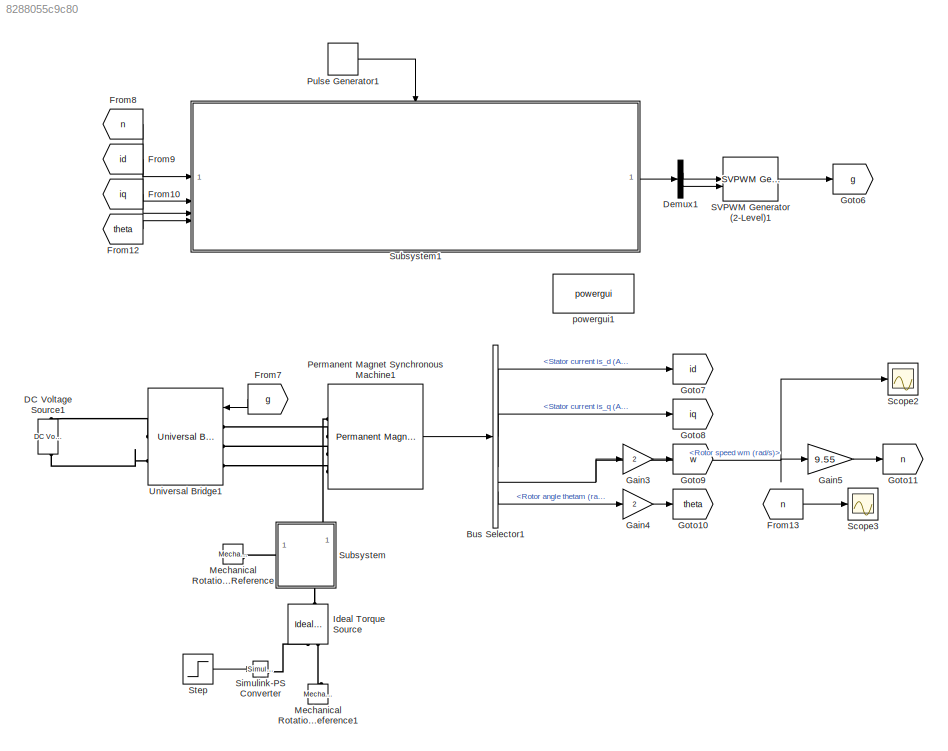
MODEL slx_8288055c9c80
KIND model
CONFIG AbsTol = auto
CONFIG EnableMultiTasking = off
CONFIG FixedStep = 1e-6
CONFIG MaxStep = auto
CONFIG MinStep = auto
CONFIG RelTol = 1e-3
CONFIG SampleTimeConstraint = Unconstrained
CONFIG SolverName = FixedStepAuto
CONFIG StartTime = 0.0
CONFIG StopTime = 0.1
BLOCK [BusSelector] Bus Selector1
  OutputSignals = Stator current is_d (A),Stator current is_q (A),Rotor speed wm (rad/s),Rotor angle thetam (rad)
BLOCK [Reference] DC Voltage Source1  REF=spsDCVoltageSourceLib/DC Voltage Source
  LibrarySourceBlock = sps_lib/Sources/DC Voltage Source
  SourceBlock = spsDCVoltageSourceLib/DC Voltage Source
  SourceType = DC Voltage Source
BLOCK [Demux] Demux1
  Outputs = 2
BLOCK [From] From10
  GotoTag = iq
BLOCK [From] From12
  GotoTag = theta
BLOCK [From] From13
  GotoTag = n
BLOCK [From] From7
  GotoTag = g
  NameLocation = top
BLOCK [From] From8
  GotoTag = n
BLOCK [From] From9
  GotoTag = id
BLOCK [Gain] Gain3
  Gain = 2
BLOCK [Gain] Gain4
  Gain = 2
BLOCK [Gain] Gain5
  Gain = 9.55
BLOCK [Goto] Goto10
  GotoTag = theta
BLOCK [Goto] Goto11
  GotoTag = n
BLOCK [Goto] Goto6
  GotoTag = g
BLOCK [Goto] Goto7
  GotoTag = id
BLOCK [Goto] Goto8
  GotoTag = iq
BLOCK [Goto] Goto9
  GotoTag = w
BLOCK [Reference] Ideal Torque Source  REF=fl_lib/Mechanical/Mechanical Sources/Ideal Torque Source
  NameLocation = right
  SourceBlock = fl_lib/Mechanical/Mechanical Sources/Ideal Torque Source
  SourceType = Ideal Torque Source
BLOCK [Reference] Mechanical Rotational Reference  REF=fl_lib/Mechanical/Rotational Elements/Mechanical
Rotational Reference
  SourceBlock = fl_lib/Mechanical/Rotational Elements/Mechanical\nRotational Reference
  SourceType = Mechanical\nRotational Reference
BLOCK [Reference] Mechanical Rotational Reference1  REF=fl_lib/Mechanical/Rotational Elements/Mechanical
Rotational Reference
  NameLocation = right
  SourceBlock = fl_lib/Mechanical/Rotational Elements/Mechanical\nRotational Reference
  SourceType = Mechanical\nRotational Reference
BLOCK [Reference] Permanent Magnet Synchronous Machine1  REF=spsPermanentMagnetSynchronousMachineLib/Permanent Magnet
Synchronous Machine
  LibrarySourceBlock = sps_lib/Electrical Machines/Permanent Magnet\nSynchronous Machine
  SourceBlock = spsPermanentMagnetSynchronousMachineLib/Permanent Magnet\nSynchronous Machine
  SourceType = Permanent Magnet Synchronous Machine
BLOCK [DiscretePulseGenerator] Pulse Generator1
  Period = 1e-4
  PhaseDelay = 0.5e-4
  PulseType = Time based
  PulseWidth = 5
BLOCK [Reference] SVPWM Generator (2-Level)1  REF=spsSVPWMGenerator2LevelLib/SVPWM Generator
(2-Level)
  LibrarySourceBlock = sps_lib/Power Electronics/Power Electronics Control/SVPWM Generator\n(2-Level)
  SourceBlock = spsSVPWMGenerator2LevelLib/SVPWM Generator\n(2-Level)
  SourceType = SVPWM Generator (2-Level)
BLOCK [Scope] Scope2
  Floating = off
  NumInputPorts = 1
  ScopeSpecificationString = Simulink.scopes.TimeScopeBlockCfg('CurrentConfiguration', extmgr.ConfigurationSet(extmgr.Configuration('Core','General UI',true),extmgr.Configuration('Core','Source UI',true),extmgr.Configuration('Sources','WiredSimulink',true,'DataLoggingVariableName','ScopeData2'),extmgr.Configuration('Visuals','Time Domain',true,'SerializedDisplays',{struct('MinYLimReal','-13.36134','MaxYLimReal','120.25206','Y...<+1515ch>
BLOCK [Scope] Scope3
  Floating = off
  NumInputPorts = 1
  ScopeSpecificationString = Simulink.scopes.TimeScopeBlockCfg('CurrentConfiguration', extmgr.ConfigurationSet(extmgr.Configuration('Core','General UI',true),extmgr.Configuration('Core','Source UI',true),extmgr.Configuration('Sources','WiredSimulink',true,'DataLoggingVariableName','ScopeData3'),extmgr.Configuration('Visuals','Time Domain',true,'SerializedDisplays',{struct('MinYLimReal','-120.83236','MaxYLimReal','1087.4912','...<+1500ch>
BLOCK [Reference] Simulink-PS Converter  REF=nesl_utility/Simulink-PS
Converter
  SourceBlock = nesl_utility/Simulink-PS\nConverter
  SourceType = Simulink-PS\nConverter
BLOCK [Step] Step
  SampleTime = 0
  Time = 0.05
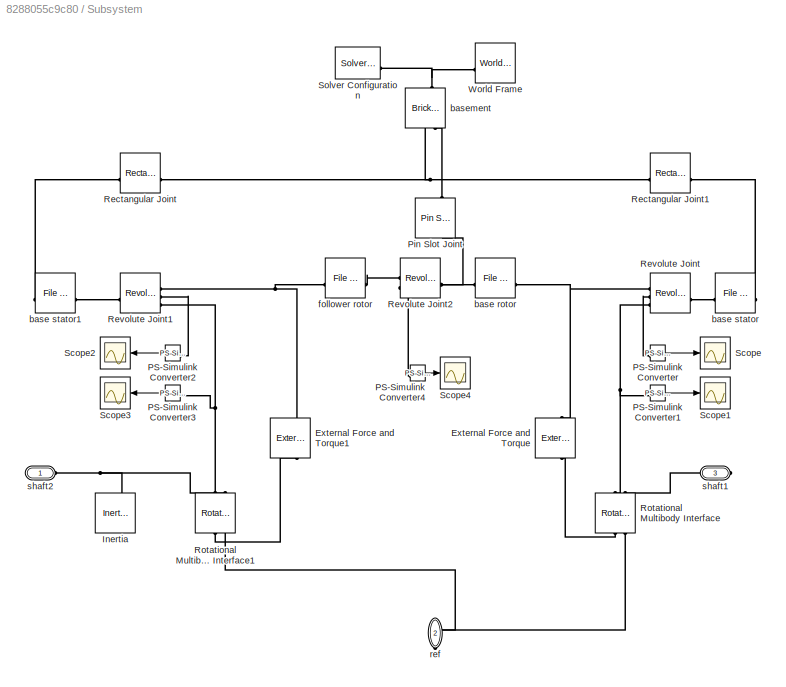
BLOCK [SubSystem] Subsystem
  NameLocation = top
  PortSchema = {"entries":[{"content":{"sides":[{"content":{},"type":"ConnectorPlacement.EquallySpacedRectSide","uuid":"b38a3604-f30c-4125-9909-86713a34e73d"},{"content":{"connectorIds":["RConn1"],"side":"RIGHT"},"type":"ConnectorPlacement.EquallySpacedRectSide","uuid":"955730bd-0fda-43a5-a17c-aceed9afa479"},{"content":{"connectorIds":["LConn1"],"side":"TOP"},"type":"ConnectorPlacement.EquallySpacedRectSide","uu...<+380ch>
BLOCK [Reference] Subsystem/External Force and Torque  REF=sm_lib/Forces and
Torques/External Force
and Torque
  NameLocation = right
  SourceBlock = sm_lib/Forces and\nTorques/External Force\nand Torque
  SourceType = External Force\nand Torque
BLOCK [Reference] Subsystem/External Force and Torque1  REF=sm_lib/Forces and
Torques/External Force
and Torque
  NameLocation = right
  SourceBlock = sm_lib/Forces and\nTorques/External Force\nand Torque
  SourceType = External Force\nand Torque
BLOCK [Reference] Subsystem/Inertia  REF=fl_lib/Mechanical/Rotational Elements/Inertia
  NameLocation = right
  SourceBlock = fl_lib/Mechanical/Rotational Elements/Inertia
  SourceType = Inertia
BLOCK [Reference] Subsystem/PS-Simulink Converter  REF=nesl_utility/PS-Simulink
Converter
  SourceBlock = nesl_utility/PS-Simulink\nConverter
  SourceType = PS-Simulink\nConverter
BLOCK [Reference] Subsystem/PS-Simulink Converter1  REF=nesl_utility/PS-Simulink
Converter
  SourceBlock = nesl_utility/PS-Simulink\nConverter
  SourceType = PS-Simulink\nConverter
BLOCK [Reference] Subsystem/PS-Simulink Converter2  REF=nesl_utility/PS-Simulink
Converter
  SourceBlock = nesl_utility/PS-Simulink\nConverter
  SourceType = PS-Simulink\nConverter
BLOCK [Reference] Subsystem/PS-Simulink Converter3  REF=nesl_utility/PS-Simulink
Converter
  SourceBlock = nesl_utility/PS-Simulink\nConverter
  SourceType = PS-Simulink\nConverter
BLOCK [Reference] Subsystem/PS-Simulink Converter4  REF=nesl_utility/PS-Simulink
Converter
  SourceBlock = nesl_utility/PS-Simulink\nConverter
  SourceType = PS-Simulink\nConverter
BLOCK [Reference] Subsystem/Pin Slot Joint  REF=sm_lib/Joints/Pin Slot Joint
  NameLocation = left
  SourceBlock = sm_lib/Joints/Pin Slot Joint
  SourceType = Pin Slot Joint
BLOCK [Reference] Subsystem/Rectangular Joint  REF=sm_lib/Joints/Rectangular
Joint
  SourceBlock = sm_lib/Joints/Rectangular\nJoint
  SourceType = Rectangular\nJoint
BLOCK [Reference] Subsystem/Rectangular Joint1  REF=sm_lib/Joints/Rectangular
Joint
  SourceBlock = sm_lib/Joints/Rectangular\nJoint
  SourceType = Rectangular\nJoint
BLOCK [Reference] Subsystem/Revolute Joint  REF=sm_lib/Joints/Revolute Joint
  NameLocation = top
  SourceBlock = sm_lib/Joints/Revolute Joint
  SourceType = Revolute Joint
BLOCK [Reference] Subsystem/Revolute Joint1  REF=sm_lib/Joints/Revolute Joint
  NameLocation = top
  SourceBlock = sm_lib/Joints/Revolute Joint
  SourceType = Revolute Joint
BLOCK [Reference] Subsystem/Revolute Joint2  REF=sm_lib/Joints/Revolute Joint
  NameLocation = top
  SourceBlock = sm_lib/Joints/Revolute Joint
  SourceType = Revolute Joint
BLOCK [Reference] Subsystem/Rotational Multibody Interface  REF=fl_lib/Mechanical/Multibody Interfaces/Rotational Multibody
Interface
  NameLocation = right
  SourceBlock = fl_lib/Mechanical/Multibody Interfaces/Rotational Multibody\nInterface
  SourceType = Rotational Multibody\nInterface
BLOCK [Reference] Subsystem/Rotational Multibody Interface1  REF=fl_lib/Mechanical/Multibody Interfaces/Rotational Multibody
Interface
  NameLocation = right
  SourceBlock = fl_lib/Mechanical/Multibody Interfaces/Rotational Multibody\nInterface
  SourceType = Rotational Multibody\nInterface
BLOCK [Scope] Subsystem/Scope
  Floating = off
  NumInputPorts = 1
  ScopeSpecificationString = Simulink.scopes.TimeScopeBlockCfg('CurrentConfiguration', extmgr.ConfigurationSet(extmgr.Configuration('Core','General UI',true),extmgr.Configuration('Core','Source UI',true),extmgr.Configuration('Sources','WiredSimulink',true),extmgr.Configuration('Visuals','Time Domain',true,'SerializedDisplays',{struct('MinYLimReal','-0.02491','MaxYLimReal','10.69605','YLabelReal','','MinYLimMag','0.00000','Max...<+1468ch>
BLOCK [Scope] Subsystem/Scope1
  Floating = off
  NumInputPorts = 1
  ScopeSpecificationString = Simulink.scopes.TimeScopeBlockCfg('CurrentConfiguration', extmgr.ConfigurationSet(extmgr.Configuration('Core','General UI',true),extmgr.Configuration('Core','Source UI',true),extmgr.Configuration('Sources','WiredSimulink',true,'DataLoggingVariableName','ScopeData1'),extmgr.Configuration('Visuals','Time Domain',true,'SerializedDisplays',{struct('MinYLimReal','-16.06081','MaxYLimReal','144.54728','Y...<+1557ch>
BLOCK [Scope] Subsystem/Scope2
  Floating = off
  NumInputPorts = 1
  ScopeSpecificationString = Simulink.scopes.TimeScopeBlockCfg('CurrentConfiguration', extmgr.ConfigurationSet(extmgr.Configuration('Core','General UI',true),extmgr.Configuration('Core','Source UI',true),extmgr.Configuration('Sources','WiredSimulink',true,'DataLoggingVariableName','ScopeData1'),extmgr.Configuration('Visuals','Time Domain',true,'SerializedDisplays',{struct('MinYLimReal','-6.90691','MaxYLimReal','1.34923','YLab...<+1520ch>
BLOCK [Scope] Subsystem/Scope3
  Floating = off
  NumInputPorts = 1
  ScopeSpecificationString = Simulink.scopes.TimeScopeBlockCfg('CurrentConfiguration', extmgr.ConfigurationSet(extmgr.Configuration('Core','General UI',true),extmgr.Configuration('Core','Source UI',true),extmgr.Configuration('Sources','WiredSimulink',true,'DataLoggingVariableName','ScopeData2'),extmgr.Configuration('Visuals','Time Domain',true,'SerializedDisplays',{struct('MinYLimReal','-199.69482','MaxYLimReal','180.87703','...<+1484ch>
BLOCK [Scope] Subsystem/Scope4
  Floating = off
  NumInputPorts = 1
  ScopeSpecificationString = Simulink.scopes.TimeScopeBlockCfg('CurrentConfiguration', extmgr.ConfigurationSet(extmgr.Configuration('Core','General UI',true),extmgr.Configuration('Core','Source UI',true),extmgr.Configuration('Sources','WiredSimulink',true,'DataLoggingVariableName','ScopeData1'),extmgr.Configuration('Visuals','Time Domain',true,'SerializedDisplays',{struct('MinYLimReal','-1.61253','MaxYLimReal','0.27496','YLab...<+1520ch>
BLOCK [Reference] Subsystem/Solver Configuration  REF=nesl_utility/Solver
Configuration
  SourceBlock = nesl_utility/Solver\nConfiguration
  SourceType = Solver\nConfiguration
BLOCK [Reference] Subsystem/World Frame  REF=sm_lib/Frames and
Transforms/World Frame
  SourceBlock = sm_lib/Frames and\nTransforms/World Frame
  SourceType = World Frame
BLOCK [Reference] Subsystem/base rotor  REF=sm_lib/Body Elements/File Solid
  SourceBlock = sm_lib/Body Elements/File Solid
  SourceType = File Solid
BLOCK [Reference] Subsystem/base stator  REF=sm_lib/Body Elements/File Solid
  SourceBlock = sm_lib/Body Elements/File Solid
  SourceType = File Solid
BLOCK [Reference] Subsystem/base stator1  REF=sm_lib/Body Elements/File Solid
  SourceBlock = sm_lib/Body Elements/File Solid
  SourceType = File Solid
BLOCK [Reference] Subsystem/basement  REF=sm_lib/Body Elements/Brick Solid
  NameLocation = right
  SourceBlock = sm_lib/Body Elements/Brick Solid
  SourceType = Brick Solid
BLOCK [Reference] Subsystem/follower rotor  REF=sm_lib/Body Elements/File Solid
  SourceBlock = sm_lib/Body Elements/File Solid
  SourceType = File Solid
BLOCK [PMIOPort] Subsystem/ref
  NameLocation = right
  Port = 2
  Side = Right
BLOCK [PMIOPort] Subsystem/shaft1
  Port = 3
  Side = Right
BLOCK [PMIOPort] Subsystem/shaft2
  Side = Left
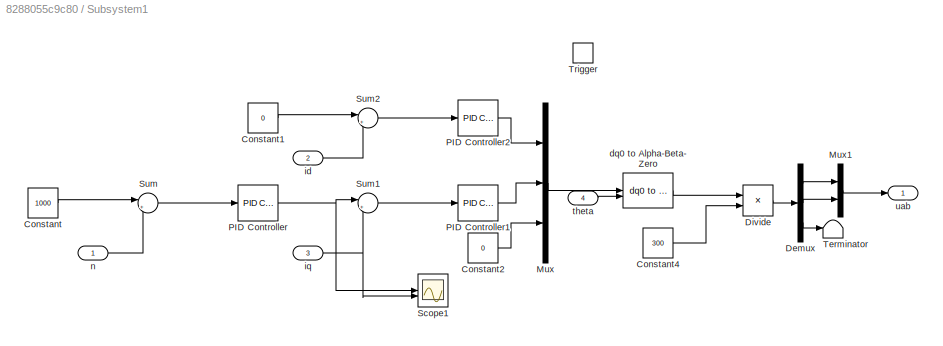
BLOCK [SubSystem] Subsystem1
BLOCK [Constant] Subsystem1/Constant
  Value = 1000
BLOCK [Constant] Subsystem1/Constant1
  Value = 0
BLOCK [Constant] Subsystem1/Constant2
  Value = 0
BLOCK [Constant] Subsystem1/Constant4
  Value = 300
BLOCK [Demux] Subsystem1/Demux
  Outputs = 3
BLOCK [Product] Subsystem1/Divide
  Inputs = */
BLOCK [Mux] Subsystem1/Mux
  DisplayOption = bar
  Inputs = 3
BLOCK [Mux] Subsystem1/Mux1
  DisplayOption = bar
  Inputs = 2
BLOCK [Reference] Subsystem1/PID Controller  REF=slpidlib/PID Controller
  LibrarySourceBlock = simulink/Continuous/PID Controller
  SourceBlock = slpidlib/PID Controller
  SourceType = PID 1dof
BLOCK [Reference] Subsystem1/PID Controller1  REF=slpidlib/PID Controller
  LibrarySourceBlock = simulink/Continuous/PID Controller
  SourceBlock = slpidlib/PID Controller
  SourceType = PID 1dof
BLOCK [Reference] Subsystem1/PID Controller2  REF=slpidlib/PID Controller
  LibrarySourceBlock = simulink/Continuous/PID Controller
  SourceBlock = slpidlib/PID Controller
  SourceType = PID 1dof
BLOCK [Scope] Subsystem1/Scope1
  Floating = off
  NumInputPorts = 2
  ScopeSpecificationString = Simulink.scopes.TimeScopeBlockCfg('CurrentConfiguration', extmgr.ConfigurationSet(extmgr.Configuration('Core','General UI',true),extmgr.Configuration('Core','Source UI',true),extmgr.Configuration('Sources','WiredSimulink',true,'DataLoggingVariableName','ScopeData1'),extmgr.Configuration('Visuals','Time Domain',true,'SerializedDisplays',{struct('MinYLimReal','-2.39115','MaxYLimReal','11.37679','YLa...<+1382ch>
BLOCK [Sum] Subsystem1/Sum
  Inputs = |+-
BLOCK [Sum] Subsystem1/Sum1
  Inputs = |+-
BLOCK [Sum] Subsystem1/Sum2
  Inputs = |+-
BLOCK [Terminator] Subsystem1/Terminator
BLOCK [TriggerPort] Subsystem1/Trigger
  PortDimensions = 1
  StatesWhenEnabling = held
  VariantControl = (inherit)
BLOCK [Reference] Subsystem1/dq0 to Alpha-Beta-Zero  REF=spsdq0toAlphaBetaZeroLib/dq0 to
Alpha-Beta-Zero
  LibrarySourceBlock = sps_lib/Control/dq0 to\nAlpha-Beta-Zero
  SourceBlock = spsdq0toAlphaBetaZeroLib/dq0 to\nAlpha-Beta-Zero
  SourceType = dq0 to Alpha-Beta-Zero Transformation
BLOCK [Inport] Subsystem1/id
  Port = 2
BLOCK [Inport] Subsystem1/iq
  Port = 3
BLOCK [Inport] Subsystem1/n
BLOCK [Inport] Subsystem1/theta
  Port = 4
BLOCK [Outport] Subsystem1/uab
BLOCK [Reference] Universal Bridge1  REF=spsUniversalBridgeLib/Universal Bridge
  LibrarySourceBlock = sps_lib/Power Electronics/Universal Bridge
  SourceBlock = spsUniversalBridgeLib/Universal Bridge
  SourceType = Universal Bridge
BLOCK [Reference] powergui1  REF=sps_lib/powergui
  LibrarySourceBlock = sps_lib/powergui
  Priority = 1
  SourceBlock = sps_lib/powergui
  SourceType = PSB option menu block
LINE Bus Selector1:1 -> Goto7:1
LINE Bus Selector1:2 -> Goto8:1
NET Bus Selector1:3 -> Gain3:1, Gain5:1, Scope2:1
LINE Bus Selector1:4 -> Gain4:1
LINE Demux1:1 -> SVPWM Generator (2-Level)1:1
LINE Demux1:2 -> SVPWM Generator (2-Level)1:2
LINE From10:1 -> Subsystem1:3
LINE From12:1 -> Subsystem1:4
LINE From13:1 -> Scope3:1
LINE From7:1 -> Universal Bridge1:1
LINE From8:1 -> Subsystem1:1
LINE From9:1 -> Subsystem1:2
LINE Gain3:1 -> Goto9:1
LINE Gain4:1 -> Goto10:1
LINE Gain5:1 -> Goto11:1
LINE Permanent Magnet Synchronous Machine1:1 -> Bus Selector1:1
LINE Pulse Generator1:1 -> Subsystem1:trigger
LINE SVPWM Generator (2-Level)1:1 -> Goto6:1
LINE Step:1 -> Simulink-PS Converter:1
LINE Subsystem/PS-Simulink Converter1:1 -> Subsystem/Scope1:1
LINE Subsystem/PS-Simulink Converter2:1 -> Subsystem/Scope2:1
LINE Subsystem/PS-Simulink Converter3:1 -> Subsystem/Scope3:1
LINE Subsystem/PS-Simulink Converter4:1 -> Subsystem/Scope4:1
LINE Subsystem/PS-Simulink Converter:1 -> Subsystem/Scope:1
LINE Subsystem1/Constant1:1 -> Subsystem1/Sum2:1
LINE Subsystem1/Constant2:1 -> Subsystem1/Mux:3
LINE Subsystem1/Constant4:1 -> Subsystem1/Divide:2
LINE Subsystem1/Constant:1 -> Subsystem1/Sum:1
LINE Subsystem1/Demux:1 -> Subsystem1/Mux1:1
LINE Subsystem1/Demux:2 -> Subsystem1/Mux1:2
LINE Subsystem1/Demux:3 -> Subsystem1/Terminator:1
LINE Subsystem1/Divide:1 -> Subsystem1/Demux:1
LINE Subsystem1/Mux1:1 -> Subsystem1/uab:1
LINE Subsystem1/Mux:1 -> Subsystem1/dq0 to Alpha-Beta-Zero:1
LINE Subsystem1/PID Controller1:1 -> Subsystem1/Mux:2
LINE Subsystem1/PID Controller2:1 -> Subsystem1/Mux:1
NET Subsystem1/PID Controller:1 -> Subsystem1/Scope1:1, Subsystem1/Sum1:1
LINE Subsystem1/Sum1:1 -> Subsystem1/PID Controller1:1
LINE Subsystem1/Sum2:1 -> Subsystem1/PID Controller2:1
LINE Subsystem1/Sum:1 -> Subsystem1/PID Controller:1
LINE Subsystem1/dq0 to Alpha-Beta-Zero:1 -> Subsystem1/Divide:1
LINE Subsystem1/id:1 -> Subsystem1/Sum2:2
NET Subsystem1/iq:1 -> Subsystem1/Scope1:2, Subsystem1/Sum1:2
LINE Subsystem1/n:1 -> Subsystem1/Sum:2
LINE Subsystem1/theta:1 -> Subsystem1/dq0 to Alpha-Beta-Zero:2
LINE Subsystem1:1 -> Demux1:1
PLINE DC Voltage Source1:LConn1 -- Universal Bridge1:RConn2
PLINE DC Voltage Source1:RConn1 -- Universal Bridge1:RConn1
PLINE Ideal Torque Source:LConn1 -- Subsystem:LConn1
PLINE Ideal Torque Source:RConn1 -- Simulink-PS Converter:RConn1
PLINE Ideal Torque Source:RConn2 -- Mechanical Rotational Reference1:LConn1
PLINE Mechanical Rotational Reference:LConn1 -- Subsystem:RConn1
PLINE Permanent Magnet Synchronous Machine1:LConn1 -- Subsystem:RConn2
PLINE Permanent Magnet Synchronous Machine1:LConn2 -- Universal Bridge1:LConn1
PLINE Permanent Magnet Synchronous Machine1:LConn3 -- Universal Bridge1:LConn2
PLINE Permanent Magnet Synchronous Machine1:LConn4 -- Universal Bridge1:LConn3
PLINE Subsystem/External Force and Torque1:LConn1 -- Subsystem/Rotational Multibody Interface1:LConn1
PNET net1: Subsystem/External Force and Torque1:RConn1 -- Subsystem/Revolute Joint1:RConn1 -- Subsystem/follower rotor:LConn1
PLINE Subsystem/External Force and Torque:LConn1 -- Subsystem/Rotational Multibody Interface:LConn1
PNET net2: Subsystem/External Force and Torque:RConn1 -- Subsystem/Revolute Joint:RConn1 -- Subsystem/base rotor:LConn1
PNET net3: Subsystem/Inertia:LConn1 -- Subsystem/Rotational Multibody Interface1:RConn2 -- Subsystem/shaft2:RConn1
PNET net4: Subsystem/PS-Simulink Converter1:LConn1 -- Subsystem/Revolute Joint:RConn3 -- Subsystem/Rotational Multibody Interface:RConn1
PLINE Subsystem/PS-Simulink Converter2:LConn1 -- Subsystem/Revolute Joint1:RConn2
PNET net5: Subsystem/PS-Simulink Converter3:LConn1 -- Subsystem/Revolute Joint1:RConn3 -- Subsystem/Rotational Multibody Interface1:RConn1
PLINE Subsystem/PS-Simulink Converter4:LConn1 -- Subsystem/Revolute Joint2:RConn2
PLINE Subsystem/PS-Simulink Converter:LConn1 -- Subsystem/Revolute Joint:RConn2
PLINE Subsystem/Pin Slot Joint:LConn1 -- Subsystem/basement:LConn2
PNET net6: Subsystem/Pin Slot Joint:RConn1 -- Subsystem/Revolute Joint2:LConn1 -- Subsystem/base rotor:RConn1
PNET net7: Subsystem/Rectangular Joint1:LConn1 -- Subsystem/Rectangular Joint:LConn1 -- Subsystem/basement:LConn1
PLINE Subsystem/Rectangular Joint1:RConn1 -- Subsystem/base stator:RConn1
PLINE Subsystem/Rectangular Joint:RConn1 -- Subsystem/base stator1:RConn1
PLINE Subsystem/Revolute Joint1:LConn1 -- Subsystem/base stator1:LConn1
PLINE Subsystem/Revolute Joint2:RConn1 -- Subsystem/follower rotor:RConn1
PLINE Subsystem/Revolute Joint:LConn1 -- Subsystem/base stator:LConn1
PNET net8: Subsystem/Rotational Multibody Interface1:LConn2 -- Subsystem/Rotational Multibody Interface:LConn2 -- Subsystem/ref:RConn1
PLINE Subsystem/Rotational Multibody Interface:RConn2 -- Subsystem/shaft1:RConn1
PNET net9: Subsystem/Solver Configuration:RConn1 -- Subsystem/World Frame:RConn1 -- Subsystem/basement:RConn1
note: NET lines group one-source signal fan-out (src -> all destinations, sorted); 1:1 wires keep LINE; PNET lines group multi-terminal physical nets as a canonical sorted terminal list (undirected conserving connections); 2-terminal nets keep the pairwise PLINE form
